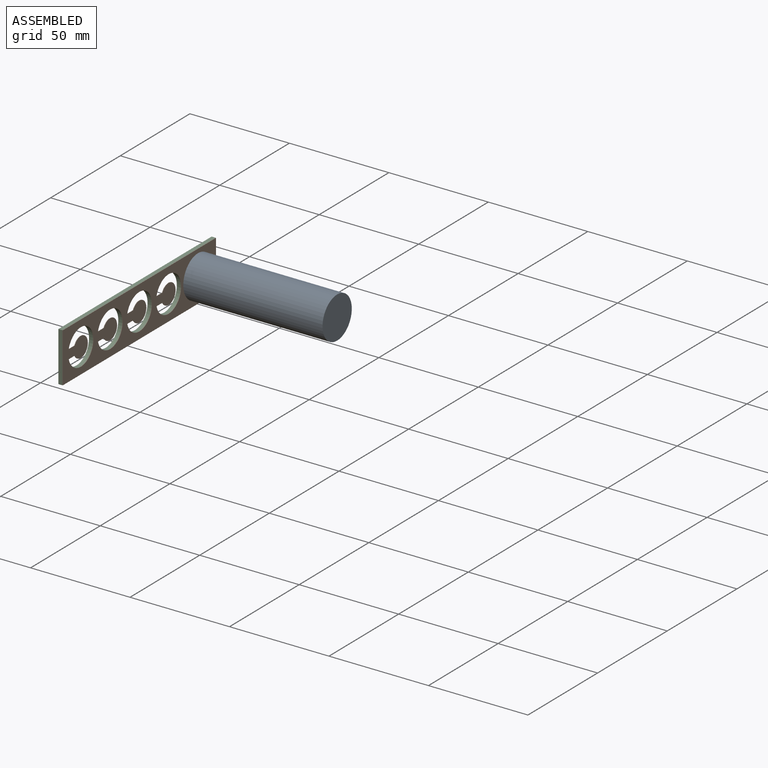
[diagram: assembled view]
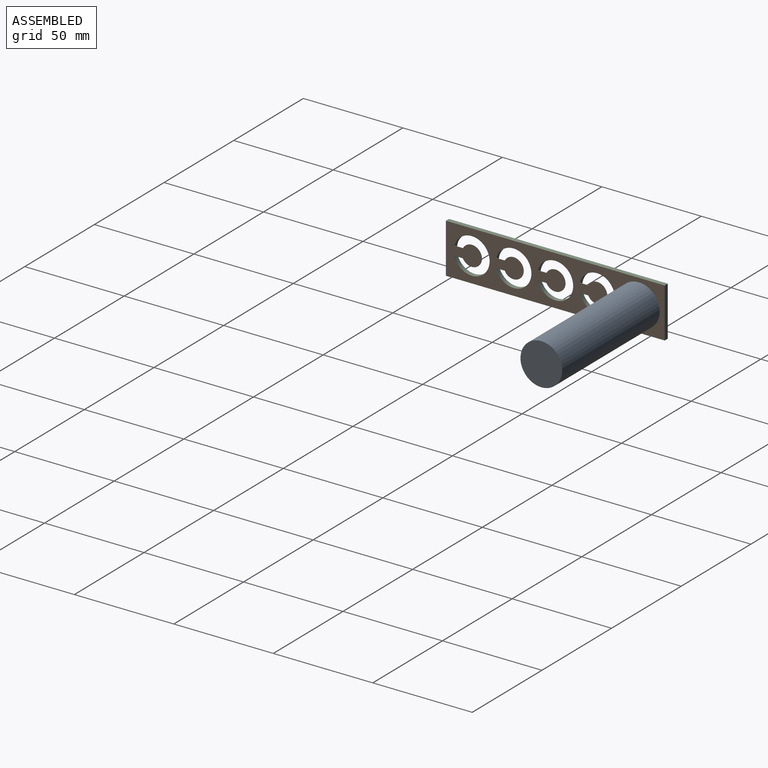
[diagram: assembled view, second angle]
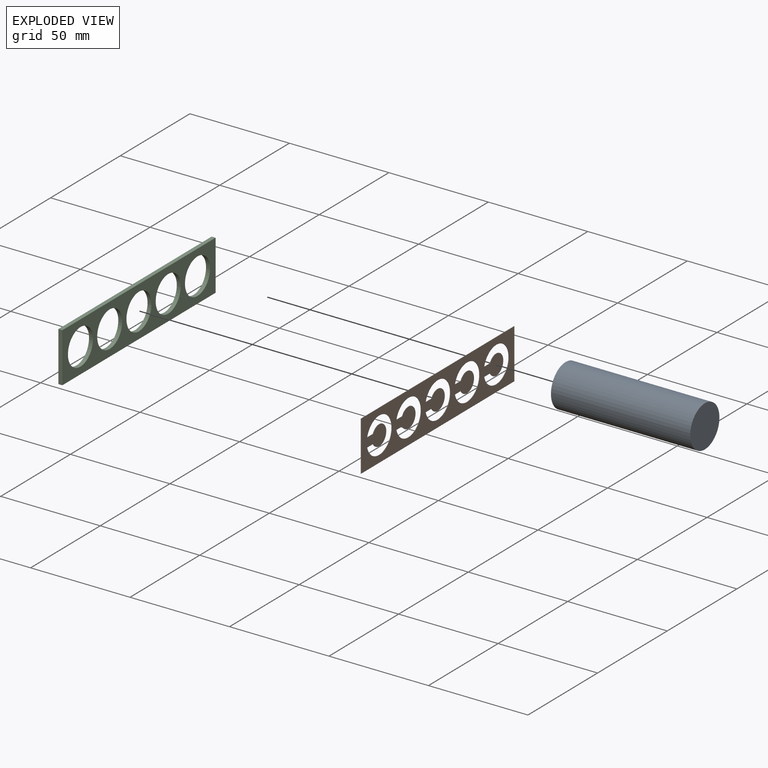
[diagram: exploded view]
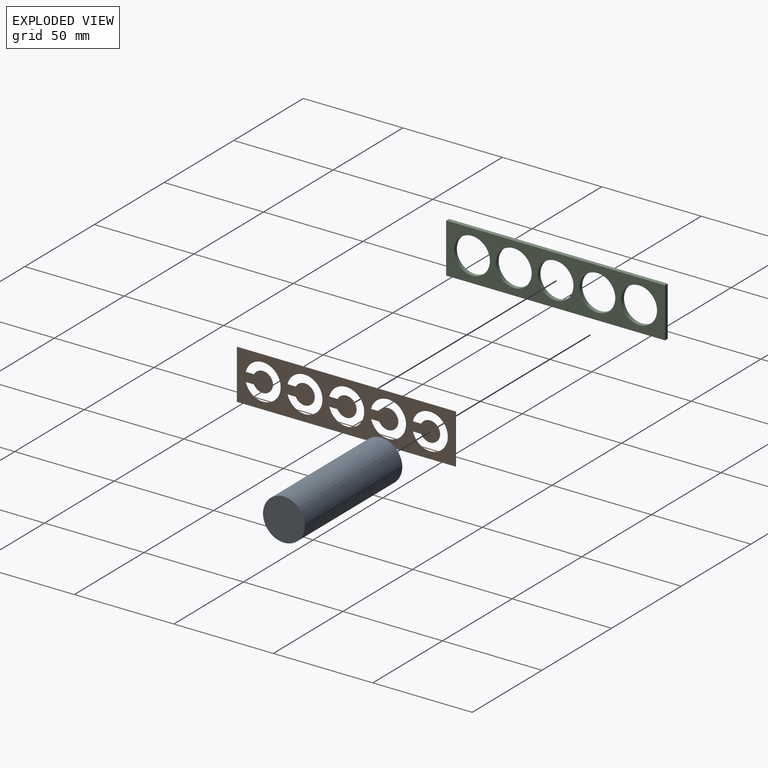
[diagram: exploded view, second angle]
ASSEMBLY  parts=3 mates=2
PART A: 3 faces, bbox 70x21x21 mm
  f0: cylinder r=10.5mm len=70mm, axis (-1,0,0), area 4618.1mm2, adj f1,f2
  f1: plane 21x21mm, normal (1,0,0), area 346.4mm2, adj f0
  f2: plane 21x21mm, normal (-1,0,0), area 346.4mm2, adj f0
PART B: 26 faces, bbox 0.2x110x25 mm
  f0: plane 110x0.2mm, normal (0,0,1), area 22mm2, adj f1,f23,f24,f25
  f1: plane 25x0.2mm, normal (0,-1,0), area 5mm2, adj f0,f2,f24,f25
  f2: plane 110x0.2mm, normal (0,0,-1), area 22mm2, adj f1,f23,f24,f25
  f3: plane 4.26x0.2mm, normal (0,0,1), area 0.9mm2, adj f4,f18,f24,f25
  f4: cylinder r=9mm len=18mm, axis (-1,0,0), area 10.4mm2, adj f3,f5,f24,f25
  f5: plane 4.26x0.2mm, normal (0,0,-1), area 0.9mm2, adj f4,f18,f24,f25
  f6: plane 4.26x0.2mm, normal (0,0,1), area 0.9mm2, adj f7,f19,f24,f25
  f7: cylinder r=9mm len=18mm, axis (-1,0,0), area 10.4mm2, adj f6,f8,f24,f25
  f8: plane 4.26x0.2mm, normal (0,0,-1), area 0.9mm2, adj f7,f19,f24,f25
  f9: plane 4.26x0.2mm, normal (0,0,1), area 0.9mm2, adj f10,f20,f24,f25
  f10: cylinder r=9mm len=18mm, axis (-1,0,0), area 10.4mm2, adj f9,f11,f24,f25
  f11: plane 4.26x0.2mm, normal (0,0,-1), area 0.9mm2, adj f10,f20,f24,f25
  f12: plane 4.26x0.2mm, normal (0,0,1), area 0.9mm2, adj f13,f21,f24,f25
  f13: cylinder r=9mm len=18mm, axis (-1,0,0), area 10.4mm2, adj f12,f14,f24,f25
  f14: plane 4.26x0.2mm, normal (0,0,-1), area 0.9mm2, adj f13,f21,f24,f25
  f15: plane 4.26x0.2mm, normal (0,0,1), area 0.9mm2, adj f16,f22,f24,f25
  f16: cylinder r=9mm len=18mm, axis (-1,0,0), area 10.4mm2, adj f15,f17,f24,f25
  f17: plane 4.26x0.2mm, normal (0,0,-1), area 0.9mm2, adj f16,f22,f24,f25
  f18: cylinder r=5mm len=10mm, axis (-1,0,0), area 5.3mm2, adj f3,f5,f24,f25
  f19: cylinder r=5mm len=10mm, axis (-1,0,0), area 5.3mm2, adj f6,f8,f24,f25
  f20: cylinder r=5mm len=10mm, axis (-1,0,0), area 5.3mm2, adj f9,f11,f24,f25
  f21: cylinder r=5mm len=10mm, axis (-1,0,0), area 5.3mm2, adj f12,f14,f24,f25
  f22: cylinder r=5mm len=10mm, axis (-1,0,0), area 5.3mm2, adj f15,f17,f24,f25
  f23: plane 25x0.2mm, normal (0,1,0), area 5mm2, adj f0,f2,f24,f25
  f24: plane 110x25mm, normal (1,0,0), area 1963.5mm2, adj f0,f1,f2,f3,f4,f5,f6,f7
  f25: plane 110x25mm, normal (-1,0,0), area 1963.5mm2, adj f0,f1,f2,f3,f4,f5,f6,f7
PART C: 11 faces, bbox 2x110x25 mm
  f0: plane 110x2mm, normal (0,0,1), area 220mm2, adj f1,f8,f9,f10
  f1: plane 25x2mm, normal (0,-1,0), area 50mm2, adj f0,f2,f9,f10
  f2: plane 110x2mm, normal (0,0,-1), area 220mm2, adj f1,f8,f9,f10
  f3: cylinder r=9mm len=18mm, axis (-1,0,0), area 113.1mm2, adj f9,f10
  f4: cylinder r=9mm len=18mm, axis (-1,0,0), area 113.1mm2, adj f9,f10
  f5: cylinder r=9mm len=18mm, axis (-1,0,0), area 113.1mm2, adj f9,f10
  f6: cylinder r=9mm len=18mm, axis (-1,0,0), area 113.1mm2, adj f9,f10
  f7: cylinder r=9mm len=18mm, axis (-1,0,0), area 113.1mm2, adj f9,f10
  f8: plane 25x2mm, normal (0,1,0), area 50mm2, adj f0,f2,f9,f10
  f9: plane 110x25mm, normal (1,0,0), area 1477.7mm2, adj f0,f1,f2,f3,f4,f5,f6,f7
  f10: plane 110x25mm, normal (-1,0,0), area 1477.7mm2, adj f0,f1,f2,f3,f4,f5,f6,f7
PLACE A t=(-38.59,-3.34,-28.26)mm fixed
PLACE B t=(-38.79,-45.34,-28.26)mm
PLACE C t=(-40.79,-45.34,-28.26)mm
MATE planar A.f0 <-> B.f24  axis (-1,0,0) through (-38.59,-3.34,-28.26)mm
MATE planar C.f3 <-> B.f25  axis (1,0,0) through (-38.79,-87.34,-28.26)mm
